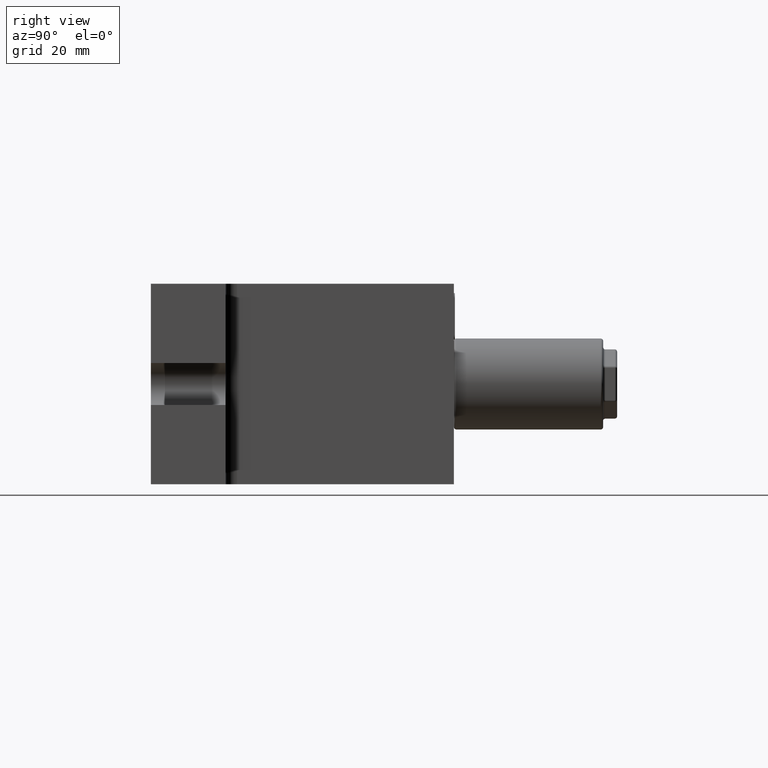
[diagram: clean part render]
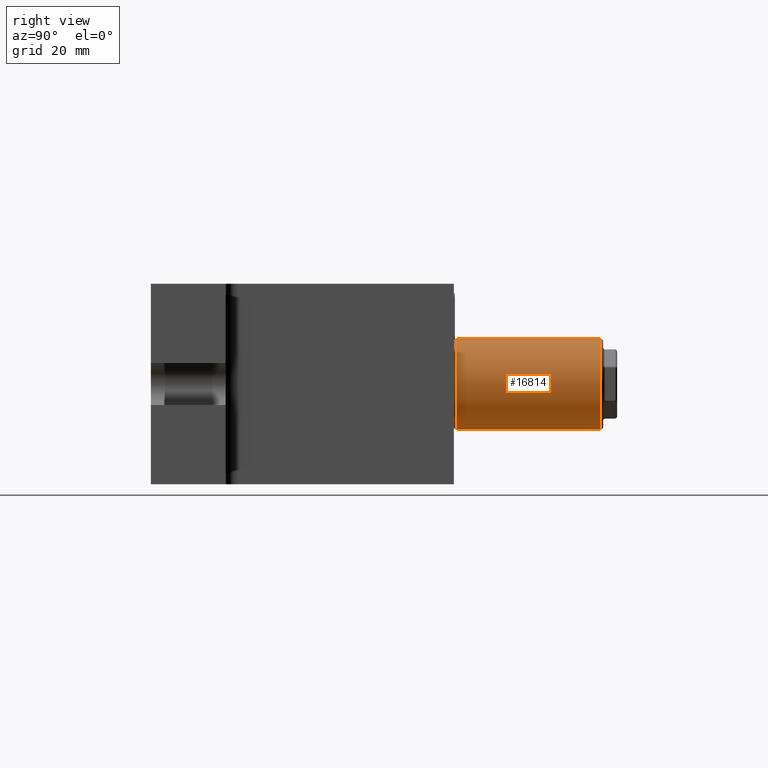
[diagram: same view with one face highlighted and labeled with its STEP entity id]
A machine part, right view. The second image highlights one B-rep face of the part: STEP entity #16814.
In plain terms, the highlighted cylindrical surface (partial cylindrical patch) has radius 9.75 mm, axis along (-0, -1, -0).
Its self-contained STEP definition (entity closure, byte-faithful):
#556 = CARTESIAN_POINT ( 'NONE',  ( 19.50000000000000000, 42.50000000000000000, -9.750000000000000000 ) ) ;
#675 = ORIENTED_EDGE ( 'NONE', *, *, #6470, .T. ) ;
#680 = CARTESIAN_POINT ( 'NONE',  ( 19.50000000000000000, 48.50000000000000000, -9.750000000000000000 ) ) ;
#736 = EDGE_CURVE ( 'NONE', #14010, #6736, #18467, .T. ) ;
#830 = CARTESIAN_POINT ( 'NONE',  ( 19.50000000000000000, 64.50000000000000000, 9.750000000000014200 ) ) ;
#951 = CARTESIAN_POINT ( 'NONE',  ( 19.50000000000000000, 48.50000000000000000, 9.750000000000000000 ) ) ;
#1025 = DIRECTION ( 'NONE',  ( 5.959270968386779200E-017, 1.000000000000000000, 1.089523766022739900E-016 ) ) ;
#1035 = ORIENTED_EDGE ( 'NONE', *, *, #9250, .T. ) ;
#1059 = EDGE_CURVE ( 'NONE', #20642, #11808, #2197, .T. ) ;
#1286 = EDGE_CURVE ( 'NONE', #6428, #1463, #17148, .T. ) ;
#1342 = CARTESIAN_POINT ( 'NONE',  ( 19.50000000000000000, 58.50000000000000000, 9.750000000000000000 ) ) ;
#1463 = VERTEX_POINT ( 'NONE', #1342 ) ;
#1572 = LINE ( 'NONE', #10593, #7516 ) ;
#2168 = LINE ( 'NONE', #830, #13491 ) ;
#2197 = CIRCLE ( 'NONE', #18998, 9.750000000000000000 ) ;
#2256 = DIRECTION ( 'NONE',  ( 0.0000000000000000000, 0.0000000000000000000, -1.000000000000000000 ) ) ;
#2324 = EDGE_CURVE ( 'NONE', #12388, #14278, #15326, .T. ) ;
#2527 = LINE ( 'NONE', #12630, #12279 ) ;
#2547 = ORIENTED_EDGE ( 'NONE', *, *, #8358, .F. ) ;
#2628 = CARTESIAN_POINT ( 'NONE',  ( 19.50000000000000000, 50.50000000000000000, 9.750000000000000000 ) ) ;
#2687 = CARTESIAN_POINT ( 'NONE',  ( 19.50000000000000000, 40.50000000000000000, 9.750000000000000000 ) ) ;
#3080 = CARTESIAN_POINT ( 'NONE',  ( 19.49999999999999600, 64.50000000000000000, -9.749999999999985800 ) ) ;
#3238 = DIRECTION ( 'NONE',  ( -5.959270968386779200E-017, -1.000000000000000000, -1.089523766022739900E-016 ) ) ;
#3307 = FACE_OUTER_BOUND ( 'NONE', #6091, .T. ) ;
#3394 = CIRCLE ( 'NONE', #5605, 9.750000000000000000 ) ;
#3615 = CARTESIAN_POINT ( 'NONE',  ( 19.50000000000000000, 50.50000000000000000, -9.750000000000000000 ) ) ;
#3897 = DIRECTION ( 'NONE',  ( -5.959270968386779200E-017, -1.000000000000000000, -1.089523766022739900E-016 ) ) ;
#4173 = EDGE_CURVE ( 'NONE', #9088, #17501, #1572, .T. ) ;
#4498 = VERTEX_POINT ( 'NONE', #15144 ) ;
#4532 = CARTESIAN_POINT ( 'NONE',  ( 19.49999999999999600, 33.00000000000000000, 9.750000000000000000 ) ) ;
#4540 = VECTOR ( 'NONE', #7109, 1000.000000000000000 ) ;
#4556 = DIRECTION ( 'NONE',  ( 5.959270968386779200E-017, 1.000000000000000000, 1.089523766022739900E-016 ) ) ;
#4995 = VECTOR ( 'NONE', #6896, 1000.000000000000000 ) ;
#5072 = DIRECTION ( 'NONE',  ( -5.959270968386779200E-017, -1.000000000000000000, -1.089523766022739900E-016 ) ) ;
#5129 = VECTOR ( 'NONE', #5072, 1000.000000000000000 ) ;
#5579 = CARTESIAN_POINT ( 'NONE',  ( 19.50000000000000000, 64.00000000000000000, 1.387778780781446000E-014 ) ) ;
#5605 = AXIS2_PLACEMENT_3D ( 'NONE', #12591, #1025, #14192 ) ;
#5785 = CARTESIAN_POINT ( 'NONE',  ( 19.50000000000000000, 64.50000000000000000, 9.750000000000000000 ) ) ;
#5948 = ORIENTED_EDGE ( 'NONE', *, *, #20308, .F. ) ;
#6091 = EDGE_LOOP ( 'NONE', ( #9320, #10291, #6175, #16224, #675, #2547, #15808, #7264, #1035, #16704, #9417, #12891, #19977, #5948, #10626, #14610 ) ) ;
#6175 = ORIENTED_EDGE ( 'NONE', *, *, #6903, .T. ) ;
#6281 = AXIS2_PLACEMENT_3D ( 'NONE', #16746, #6935, #11494 ) ;
#6395 = CARTESIAN_POINT ( 'NONE',  ( 19.50000000000000000, 56.50000000000000000, 9.750000000000000000 ) ) ;
#6428 = VERTEX_POINT ( 'NONE', #6395 ) ;
#6470 = EDGE_CURVE ( 'NONE', #6428, #13648, #2527, .T. ) ;
#6504 = EDGE_CURVE ( 'NONE', #14278, #21326, #21079, .T. ) ;
#6736 = VERTEX_POINT ( 'NONE', #556 ) ;
#6781 = CARTESIAN_POINT ( 'NONE',  ( 19.50000000000000000, 64.50000000000000000, 9.750000000000014200 ) ) ;
#6896 = DIRECTION ( 'NONE',  ( -5.959270968386779200E-017, -1.000000000000000000, -1.089523766022739900E-016 ) ) ;
#6903 = EDGE_CURVE ( 'NONE', #11808, #1463, #17219, .T. ) ;
#6935 = DIRECTION ( 'NONE',  ( -5.959270968386779200E-017, -1.000000000000000000, -1.089523766022739900E-016 ) ) ;
#7109 = DIRECTION ( 'NONE',  ( -5.959270968386779200E-017, -1.000000000000000000, -1.089523766022739900E-016 ) ) ;
#7264 = ORIENTED_EDGE ( 'NONE', *, *, #6504, .T. ) ;
#7295 = DIRECTION ( 'NONE',  ( -5.959270968386779200E-017, -1.000000000000000000, -1.089523766022739900E-016 ) ) ;
#7309 = VECTOR ( 'NONE', #16848, 1000.000000000000000 ) ;
#7516 = VECTOR ( 'NONE', #20369, 1000.000000000000000 ) ;
#8358 = EDGE_CURVE ( 'NONE', #12388, #13648, #10906, .T. ) ;
#8561 = VECTOR ( 'NONE', #3897, 1000.000000000000000 ) ;
#8689 = CARTESIAN_POINT ( 'NONE',  ( 19.49999999999999600, 64.50000000000000000, -9.749999999999985800 ) ) ;
#8867 = VERTEX_POINT ( 'NONE', #21161 ) ;
#9088 = VERTEX_POINT ( 'NONE', #13507 ) ;
#9250 = EDGE_CURVE ( 'NONE', #21326, #13329, #2168, .T. ) ;
#9320 = ORIENTED_EDGE ( 'NONE', *, *, #9625, .F. ) ;
#9321 = LINE ( 'NONE', #18078, #4995 ) ;
#9417 = ORIENTED_EDGE ( 'NONE', *, *, #4173, .F. ) ;
#9625 = EDGE_CURVE ( 'NONE', #20642, #4498, #9321, .T. ) ;
#9781 = LINE ( 'NONE', #14113, #20619 ) ;
#9858 = VECTOR ( 'NONE', #14574, 1000.000000000000000 ) ;
#9876 = VECTOR ( 'NONE', #17209, 1000.000000000000000 ) ;
#10291 = ORIENTED_EDGE ( 'NONE', *, *, #1059, .T. ) ;
#10593 = CARTESIAN_POINT ( 'NONE',  ( 19.49999999999999600, 64.50000000000000000, -9.749999999999985800 ) ) ;
#10626 = ORIENTED_EDGE ( 'NONE', *, *, #20112, .F. ) ;
#10878 = EDGE_CURVE ( 'NONE', #4498, #8867, #18626, .T. ) ;
#10906 = LINE ( 'NONE', #19604, #17137 ) ;
#11408 = EDGE_CURVE ( 'NONE', #13329, #17501, #3394, .T. ) ;
#11494 = DIRECTION ( 'NONE',  ( 0.0000000000000000000, 0.0000000000000000000, 1.000000000000000000 ) ) ;
#11808 = VERTEX_POINT ( 'NONE', #15755 ) ;
#12279 = VECTOR ( 'NONE', #3238, 1000.000000000000000 ) ;
#12388 = VERTEX_POINT ( 'NONE', #951 ) ;
#12433 = EDGE_CURVE ( 'NONE', #9088, #6736, #9781, .T. ) ;
#12591 = CARTESIAN_POINT ( 'NONE',  ( 19.50000000000000000, 33.00000000000000000, 0.0000000000000000000 ) ) ;
#12630 = CARTESIAN_POINT ( 'NONE',  ( 19.50000000000000000, 64.50000000000000000, 9.750000000000014200 ) ) ;
#12891 = ORIENTED_EDGE ( 'NONE', *, *, #12433, .T. ) ;
#13329 = VERTEX_POINT ( 'NONE', #4532 ) ;
#13491 = VECTOR ( 'NONE', #20447, 1000.000000000000000 ) ;
#13507 = CARTESIAN_POINT ( 'NONE',  ( 19.50000000000000000, 40.50000000000000000, -9.750000000000000000 ) ) ;
#13648 = VERTEX_POINT ( 'NONE', #2628 ) ;
#13944 = VERTEX_POINT ( 'NONE', #3615 ) ;
#14010 = VERTEX_POINT ( 'NONE', #680 ) ;
#14113 = CARTESIAN_POINT ( 'NONE',  ( 19.50000000000000000, 64.50000000000000000, -9.750000000000000000 ) ) ;
#14192 = DIRECTION ( 'NONE',  ( 0.0000000000000000000, 0.0000000000000000000, -1.000000000000000000 ) ) ;
#14278 = VERTEX_POINT ( 'NONE', #16321 ) ;
#14574 = DIRECTION ( 'NONE',  ( -5.959270968386779200E-017, -1.000000000000000000, -1.089523766022739900E-016 ) ) ;
#14610 = ORIENTED_EDGE ( 'NONE', *, *, #10878, .F. ) ;
#14739 = CARTESIAN_POINT ( 'NONE',  ( 19.50000000000000000, 64.50000000000000000, 9.750000000000000000 ) ) ;
#15144 = CARTESIAN_POINT ( 'NONE',  ( 19.50000000000000000, 58.50000000000000000, -9.750000000000000000 ) ) ;
#15153 = VECTOR ( 'NONE', #19585, 1000.000000000000000 ) ;
#15309 = LINE ( 'NONE', #3080, #9858 ) ;
#15326 = LINE ( 'NONE', #15547, #9876 ) ;
#15340 = VECTOR ( 'NONE', #19029, 1000.000000000000000 ) ;
#15547 = CARTESIAN_POINT ( 'NONE',  ( 19.50000000000000000, 64.50000000000000000, 9.750000000000014200 ) ) ;
#15755 = CARTESIAN_POINT ( 'NONE',  ( 19.49999999999999600, 64.00000000000000000, 9.750000000000014200 ) ) ;
#15808 = ORIENTED_EDGE ( 'NONE', *, *, #2324, .T. ) ;
#16033 = CARTESIAN_POINT ( 'NONE',  ( 19.49999999999999600, 33.00000000000000000, -9.750000000000000000 ) ) ;
#16185 = CYLINDRICAL_SURFACE ( 'NONE', #6281, 9.750000000000000000 ) ;
#16224 = ORIENTED_EDGE ( 'NONE', *, *, #1286, .F. ) ;
#16321 = CARTESIAN_POINT ( 'NONE',  ( 19.50000000000000000, 42.50000000000000000, 9.750000000000000000 ) ) ;
#16704 = ORIENTED_EDGE ( 'NONE', *, *, #11408, .T. ) ;
#16746 = CARTESIAN_POINT ( 'NONE',  ( 19.50000000000000000, 64.50000000000000000, 1.387778780781446000E-014 ) ) ;
#16814 = ADVANCED_FACE ( 'NONE', ( #3307 ), #16185, .T. ) ;
#16848 = DIRECTION ( 'NONE',  ( -5.959270968386779200E-017, -1.000000000000000000, -1.089523766022739900E-016 ) ) ;
#17137 = VECTOR ( 'NONE', #4556, 1000.000000000000000 ) ;
#17148 = LINE ( 'NONE', #5785, #15340 ) ;
#17209 = DIRECTION ( 'NONE',  ( -5.959270968386779200E-017, -1.000000000000000000, -1.089523766022739900E-016 ) ) ;
#17212 = CARTESIAN_POINT ( 'NONE',  ( 19.50000000000000000, 64.50000000000000000, -9.750000000000000000 ) ) ;
#17219 = LINE ( 'NONE', #6781, #5129 ) ;
#17360 = LINE ( 'NONE', #18644, #7309 ) ;
#17501 = VERTEX_POINT ( 'NONE', #16033 ) ;
#18078 = CARTESIAN_POINT ( 'NONE',  ( 19.49999999999999600, 64.50000000000000000, -9.749999999999985800 ) ) ;
#18467 = LINE ( 'NONE', #8689, #4540 ) ;
#18626 = LINE ( 'NONE', #17212, #8561 ) ;
#18644 = CARTESIAN_POINT ( 'NONE',  ( 19.50000000000000000, 64.50000000000000000, -9.750000000000000000 ) ) ;
#18998 = AXIS2_PLACEMENT_3D ( 'NONE', #5579, #7295, #2256 ) ;
#19029 = DIRECTION ( 'NONE',  ( 5.959270968386779200E-017, 1.000000000000000000, 1.089523766022739900E-016 ) ) ;
#19123 = DIRECTION ( 'NONE',  ( 5.959270968386779200E-017, 1.000000000000000000, 1.089523766022739900E-016 ) ) ;
#19585 = DIRECTION ( 'NONE',  ( -5.959270968386779200E-017, -1.000000000000000000, -1.089523766022739900E-016 ) ) ;
#19604 = CARTESIAN_POINT ( 'NONE',  ( 19.50000000000000000, 64.50000000000000000, 9.750000000000000000 ) ) ;
#19977 = ORIENTED_EDGE ( 'NONE', *, *, #736, .F. ) ;
#19987 = CARTESIAN_POINT ( 'NONE',  ( 19.49999999999999600, 64.00000000000000000, -9.749999999999985800 ) ) ;
#20112 = EDGE_CURVE ( 'NONE', #8867, #13944, #15309, .T. ) ;
#20308 = EDGE_CURVE ( 'NONE', #13944, #14010, #17360, .T. ) ;
#20369 = DIRECTION ( 'NONE',  ( -5.959270968386779200E-017, -1.000000000000000000, -1.089523766022739900E-016 ) ) ;
#20447 = DIRECTION ( 'NONE',  ( -5.959270968386779200E-017, -1.000000000000000000, -1.089523766022739900E-016 ) ) ;
#20619 = VECTOR ( 'NONE', #19123, 1000.000000000000000 ) ;
#20642 = VERTEX_POINT ( 'NONE', #19987 ) ;
#21079 = LINE ( 'NONE', #14739, #15153 ) ;
#21161 = CARTESIAN_POINT ( 'NONE',  ( 19.50000000000000000, 56.50000000000000000, -9.750000000000000000 ) ) ;
#21326 = VERTEX_POINT ( 'NONE', #2687 ) ;